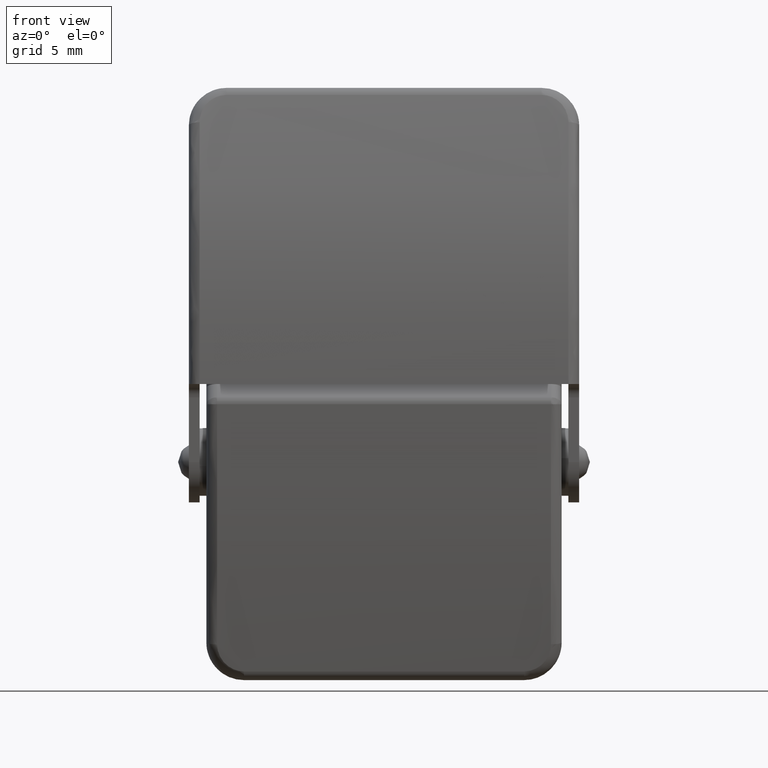
[diagram: clean part render]
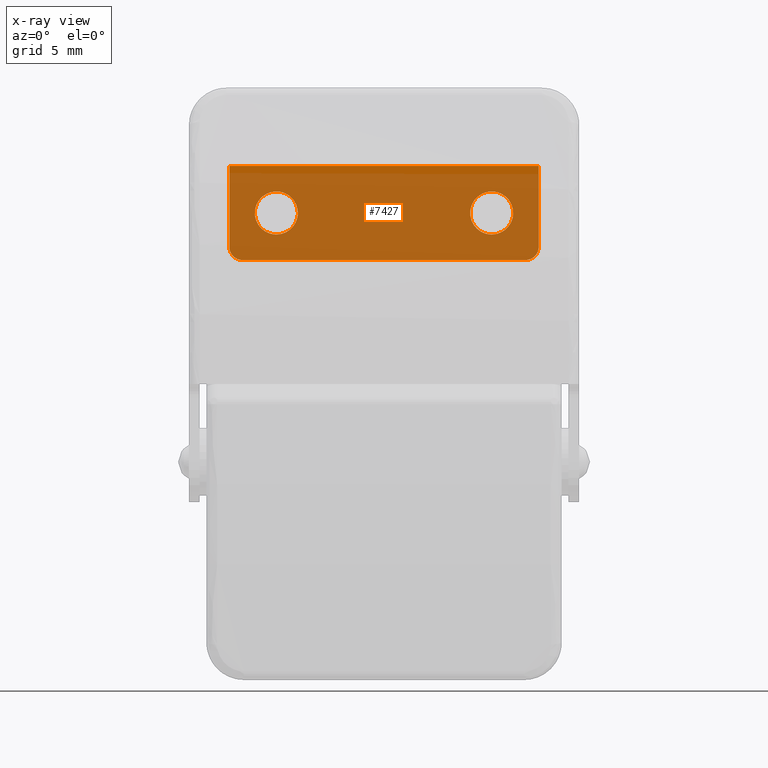
[diagram: x-ray — body ghosted, one internal face saturated and labeled with its STEP entity id]
A machine part, front view, then the same camera in x-ray: the body is ghosted and one INTERNAL B-rep face — a face not visible from any outside direction — is saturated and labeled: STEP entity #7427.
In plain terms, the highlighted face is a freeform B-spline surface patch.
Its self-contained STEP definition (entity closure, byte-faithful):
#6499=CARTESIAN_POINT('',(60.411184757832942,35.900000000001413,26.188854775800021));
#6500=VERTEX_POINT('',#6499);
#6506=CARTESIAN_POINT('',(61.999999999973298,35.900000000001413,24.399999999999999));
#6507=VERTEX_POINT('',#6506);
#6508=CARTESIAN_POINT('',(60.411184757832942,35.900000000001405,26.188854775800028));
#6509=CARTESIAN_POINT('',(60.399999999973296,35.900000000001405,26.094758591795962));
#6510=CARTESIAN_POINT('',(60.399999999973303,35.900000000001413,26.0));
#6511=CARTESIAN_POINT('',(60.399999999973311,35.900000000001405,24.400000000000002));
#6512=CARTESIAN_POINT('',(61.999999999973298,35.900000000001413,24.399999999999999));
#6520=(BOUNDED_CURVE()B_SPLINE_CURVE(2,(#6508,#6509,#6510,#6511,#6512),.UNSPECIFIED.,.F.,.U.)B_SPLINE_CURVE_WITH_KNOTS((3,2,3),(0.229562473441352,0.250000000000000,0.500000000000000),.UNSPECIFIED.)CURVE()GEOMETRIC_REPRESENTATION_ITEM()RATIONAL_B_SPLINE_CURVE((0.956026754042271,0.976055948246609,1.0,0.707106781186548,1.0))REPRESENTATION_ITEM(''));
#6521=EDGE_CURVE('',#6500,#6507,#6520,.T.);
#6523=CARTESIAN_POINT('',(63.597015677428452,35.900000000001413,25.902322336419910));
#6524=VERTEX_POINT('',#6523);
#6525=CARTESIAN_POINT('',(61.999999999973298,35.900000000001413,24.399999999999999));
#6526=CARTESIAN_POINT('',(63.505129706409953,35.900000000001405,24.400000000000002));
#6527=CARTESIAN_POINT('',(63.597015677428452,35.900000000001405,25.902322336419914));
#6535=(BOUNDED_CURVE()B_SPLINE_CURVE(2,(#6525,#6526,#6527),.UNSPECIFIED.,.F.,.U.)B_SPLINE_CURVE_WITH_KNOTS((3,3),(0.500000000000000,0.739332962171888),.UNSPECIFIED.)CURVE()GEOMETRIC_REPRESENTATION_ITEM()RATIONAL_B_SPLINE_CURVE((1.0,0.719603993365270,0.976072041523006))REPRESENTATION_ITEM(''));
#6536=EDGE_CURVE('',#6507,#6524,#6535,.T.);
#6610=CARTESIAN_POINT('',(61.999999999973298,35.900000000001413,27.600000000000001));
#6611=VERTEX_POINT('',#6610);
#6612=CARTESIAN_POINT('',(63.597015677428452,35.900000000001420,25.902322336419918));
#6613=CARTESIAN_POINT('',(63.599999999973306,35.900000000001405,25.951115578397037));
#6614=CARTESIAN_POINT('',(63.599999999973313,35.900000000001413,26.0));
#6615=CARTESIAN_POINT('',(63.599999999973299,35.900000000001405,27.599999999999994));
#6616=CARTESIAN_POINT('',(61.999999999973298,35.900000000001413,27.600000000000001));
#6624=(BOUNDED_CURVE()B_SPLINE_CURVE(2,(#6612,#6613,#6614,#6615,#6616),.UNSPECIFIED.,.F.,.U.)B_SPLINE_CURVE_WITH_KNOTS((3,2,3),(0.739332962171889,0.750000000000000,1.0),.UNSPECIFIED.)CURVE()GEOMETRIC_REPRESENTATION_ITEM()RATIONAL_B_SPLINE_CURVE((0.976072041523008,0.987502787821278,1.0,0.707106781186548,1.0))REPRESENTATION_ITEM(''));
#6625=EDGE_CURVE('',#6524,#6611,#6624,.T.);
#6627=CARTESIAN_POINT('',(61.999999999973298,35.900000000001413,27.600000000000001));
#6628=CARTESIAN_POINT('',(60.578920759080219,35.900000000001398,27.600000000000001));
#6629=CARTESIAN_POINT('',(60.411184757832942,35.900000000001405,26.188854775800024));
#6637=(BOUNDED_CURVE()B_SPLINE_CURVE(2,(#6627,#6628,#6629),.UNSPECIFIED.,.F.,.U.)B_SPLINE_CURVE_WITH_KNOTS((3,3),(0.0,0.229562473441353),.UNSPECIFIED.)CURVE()GEOMETRIC_REPRESENTATION_ITEM()RATIONAL_B_SPLINE_CURVE((1.0,0.731050832939938,0.956026754042271))REPRESENTATION_ITEM(''));
#6638=EDGE_CURVE('',#6611,#6500,#6637,.T.);
#6685=CARTESIAN_POINT('',(76.411184757832942,35.900000000001413,26.188854775800021));
#6686=VERTEX_POINT('',#6685);
#6692=CARTESIAN_POINT('',(77.999999999973298,35.900000000001413,24.399999999999999));
#6693=VERTEX_POINT('',#6692);
#6694=CARTESIAN_POINT('',(76.411184757832942,35.900000000001398,26.188854775800024));
#6695=CARTESIAN_POINT('',(76.399999999973275,35.900000000001413,26.094758591795966));
#6696=CARTESIAN_POINT('',(76.399999999973289,35.900000000001413,26.0));
#6697=CARTESIAN_POINT('',(76.399999999973289,35.900000000001405,24.400000000000002));
#6698=CARTESIAN_POINT('',(77.999999999973298,35.900000000001413,24.399999999999999));
#6706=(BOUNDED_CURVE()B_SPLINE_CURVE(2,(#6694,#6695,#6696,#6697,#6698),.UNSPECIFIED.,.F.,.U.)B_SPLINE_CURVE_WITH_KNOTS((3,2,3),(0.229562473441352,0.250000000000000,0.500000000000000),.UNSPECIFIED.)CURVE()GEOMETRIC_REPRESENTATION_ITEM()RATIONAL_B_SPLINE_CURVE((0.956026754042270,0.976055948246609,1.0,0.707106781186548,1.0))REPRESENTATION_ITEM(''));
#6707=EDGE_CURVE('',#6686,#6693,#6706,.T.);
#6709=CARTESIAN_POINT('',(79.597015677428459,35.900000000001413,25.902322336419921));
#6710=VERTEX_POINT('',#6709);
#6711=CARTESIAN_POINT('',(77.999999999973298,35.900000000001413,24.399999999999999));
#6712=CARTESIAN_POINT('',(79.505129706409988,35.900000000001413,24.399999999999995));
#6713=CARTESIAN_POINT('',(79.597015677428459,35.900000000001405,25.902322336419921));
#6721=(BOUNDED_CURVE()B_SPLINE_CURVE(2,(#6711,#6712,#6713),.UNSPECIFIED.,.F.,.U.)B_SPLINE_CURVE_WITH_KNOTS((3,3),(0.500000000000000,0.739332962171890),.UNSPECIFIED.)CURVE()GEOMETRIC_REPRESENTATION_ITEM()RATIONAL_B_SPLINE_CURVE((1.0,0.719603993365268,0.976072041523010))REPRESENTATION_ITEM(''));
#6722=EDGE_CURVE('',#6693,#6710,#6721,.T.);
#6796=CARTESIAN_POINT('',(77.999999999973298,35.900000000001413,27.600000000000001));
#6797=VERTEX_POINT('',#6796);
#6798=CARTESIAN_POINT('',(79.597015677428459,35.900000000001398,25.902322336419918));
#6799=CARTESIAN_POINT('',(79.599999999973306,35.900000000001398,25.951115578397037));
#6800=CARTESIAN_POINT('',(79.599999999973306,35.900000000001413,26.0));
#6801=CARTESIAN_POINT('',(79.599999999973292,35.900000000001405,27.599999999999994));
#6802=CARTESIAN_POINT('',(77.999999999973298,35.900000000001413,27.600000000000001));
#6810=(BOUNDED_CURVE()B_SPLINE_CURVE(2,(#6798,#6799,#6800,#6801,#6802),.UNSPECIFIED.,.F.,.U.)B_SPLINE_CURVE_WITH_KNOTS((3,2,3),(0.739332962171889,0.750000000000000,1.0),.UNSPECIFIED.)CURVE()GEOMETRIC_REPRESENTATION_ITEM()RATIONAL_B_SPLINE_CURVE((0.976072041523008,0.987502787821279,1.0,0.707106781186548,1.0))REPRESENTATION_ITEM(''));
#6811=EDGE_CURVE('',#6710,#6797,#6810,.T.);
#6813=CARTESIAN_POINT('',(77.999999999973298,35.900000000001413,27.600000000000001));
#6814=CARTESIAN_POINT('',(76.578920759080191,35.900000000001398,27.600000000000001));
#6815=CARTESIAN_POINT('',(76.411184757832942,35.900000000001398,26.188854775800024));
#6823=(BOUNDED_CURVE()B_SPLINE_CURVE(2,(#6813,#6814,#6815),.UNSPECIFIED.,.F.,.U.)B_SPLINE_CURVE_WITH_KNOTS((3,3),(0.0,0.229562473441352),.UNSPECIFIED.)CURVE()GEOMETRIC_REPRESENTATION_ITEM()RATIONAL_B_SPLINE_CURVE((1.0,0.731050832939939,0.956026754042270))REPRESENTATION_ITEM(''));
#6824=EDGE_CURVE('',#6797,#6686,#6823,.T.);
#6983=CARTESIAN_POINT('',(81.499999999973284,35.900000000002613,23.499999999997598));
#6984=VERTEX_POINT('',#6983);
#6990=CARTESIAN_POINT('',(80.499999999973284,35.900000000001299,22.499999999997598));
#6991=VERTEX_POINT('',#6990);
#6992=CARTESIAN_POINT('',(80.499999999973284,35.900000000001292,22.499999999997598));
#6993=CARTESIAN_POINT('',(81.499999999973284,35.900000000001292,22.499999999997595));
#6994=CARTESIAN_POINT('',(81.499999999973284,35.900000000002613,23.499999999997598));
#7002=(BOUNDED_CURVE()B_SPLINE_CURVE(2,(#6992,#6993,#6994),.UNSPECIFIED.,.F.,.U.)CURVE()GEOMETRIC_REPRESENTATION_ITEM()QUASI_UNIFORM_CURVE()RATIONAL_B_SPLINE_CURVE((1.0,0.707106781186548,1.0))REPRESENTATION_ITEM(''));
#7003=EDGE_CURVE('',#6991,#6984,#7002,.T.);
#7044=CARTESIAN_POINT('',(59.499999999973099,35.900000000001299,22.499999999997598));
#7045=VERTEX_POINT('',#7044);
#7051=CARTESIAN_POINT('',(58.499999999973213,35.900000000002613,23.499999999997598));
#7052=VERTEX_POINT('',#7051);
#7053=CARTESIAN_POINT('',(58.499999999973213,35.900000000002613,23.499999999997598));
#7054=CARTESIAN_POINT('',(58.499999999973198,35.900000000001292,22.499999999997698));
#7055=CARTESIAN_POINT('',(59.499999999973099,35.900000000001292,22.499999999997598));
#7063=(BOUNDED_CURVE()B_SPLINE_CURVE(2,(#7053,#7054,#7055),.UNSPECIFIED.,.F.,.U.)CURVE()GEOMETRIC_REPRESENTATION_ITEM()QUASI_UNIFORM_CURVE()RATIONAL_B_SPLINE_CURVE((1.0,0.707106781186584,1.0))REPRESENTATION_ITEM(''));
#7064=EDGE_CURVE('',#7052,#7045,#7063,.T.);
#7201=CARTESIAN_POINT('',(81.499999999973284,35.900000000010500,29.500000000021199));
#7202=VERTEX_POINT('',#7201);
#7203=CARTESIAN_POINT('',(81.499999999973284,35.900000000002613,23.499999999997598));
#7204=CARTESIAN_POINT('',(81.499999999973284,35.900000000010500,29.500000000021199));
#7205=QUASI_UNIFORM_CURVE('',1,(#7203,#7204),.UNSPECIFIED.,.F.,.U.);
#7206=EDGE_CURVE('',#6984,#7202,#7205,.T.);
#7253=CARTESIAN_POINT('',(58.499999999973099,35.900000000010500,29.500000000021199));
#7254=VERTEX_POINT('',#7253);
#7255=CARTESIAN_POINT('',(58.499999999973213,35.900000000002613,23.499999999997598));
#7256=CARTESIAN_POINT('',(58.499999999973099,35.900000000010500,29.500000000021199));
#7257=QUASI_UNIFORM_CURVE('',1,(#7255,#7256),.UNSPECIFIED.,.F.,.U.);
#7258=EDGE_CURVE('',#7052,#7254,#7257,.T.);
#7390=CARTESIAN_POINT('',(58.499999999973099,35.900000000010500,29.500000000021199));
#7391=CARTESIAN_POINT('',(81.499999999973284,35.900000000010500,29.500000000021199));
#7392=QUASI_UNIFORM_CURVE('',1,(#7390,#7391),.UNSPECIFIED.,.F.,.U.);
#7393=EDGE_CURVE('',#7254,#7202,#7392,.T.);
#7398=CARTESIAN_POINT('',(57.351150044551552,35.900000000000830,22.150350013563781));
#7399=CARTESIAN_POINT('',(57.351150044551552,35.900000000010969,29.849650174209650));
#7400=CARTESIAN_POINT('',(82.648850572302919,35.900000000000830,22.150350013563781));
#7401=CARTESIAN_POINT('',(82.648850572302919,35.900000000010969,29.849650174209650));
#7402=B_SPLINE_SURFACE_WITH_KNOTS('',1,1,((#7398,#7400),(#7399,#7401)),.UNSPECIFIED.,.F.,.F.,.U.,(2,2),(2,2),(0.0,7.699300160645874),(0.0,25.297700527751370),.UNSPECIFIED.);
#7403=ORIENTED_EDGE('',*,*,#7258,.F.);
#7404=ORIENTED_EDGE('',*,*,#7064,.T.);
#7405=CARTESIAN_POINT('',(59.499999999973099,35.900000000001299,22.499999999997598));
#7406=CARTESIAN_POINT('',(80.499999999973284,35.900000000001299,22.499999999997598));
#7407=QUASI_UNIFORM_CURVE('',1,(#7405,#7406),.UNSPECIFIED.,.F.,.U.);
#7408=EDGE_CURVE('',#7045,#6991,#7407,.T.);
#7409=ORIENTED_EDGE('',*,*,#7408,.T.);
#7410=ORIENTED_EDGE('',*,*,#7003,.T.);
#7411=ORIENTED_EDGE('',*,*,#7206,.T.);
#7412=ORIENTED_EDGE('',*,*,#7393,.F.);
#7413=EDGE_LOOP('',(#7403,#7404,#7409,#7410,#7411,#7412));
#7414=FACE_OUTER_BOUND('',#7413,.T.);
#7415=ORIENTED_EDGE('',*,*,#6722,.F.);
#7416=ORIENTED_EDGE('',*,*,#6707,.F.);
#7417=ORIENTED_EDGE('',*,*,#6824,.F.);
#7418=ORIENTED_EDGE('',*,*,#6811,.F.);
#7419=EDGE_LOOP('',(#7415,#7416,#7417,#7418));
#7420=FACE_BOUND('',#7419,.T.);
#7421=ORIENTED_EDGE('',*,*,#6536,.F.);
#7422=ORIENTED_EDGE('',*,*,#6521,.F.);
#7423=ORIENTED_EDGE('',*,*,#6638,.F.);
#7424=ORIENTED_EDGE('',*,*,#6625,.F.);
#7425=EDGE_LOOP('',(#7421,#7422,#7423,#7424));
#7426=FACE_BOUND('',#7425,.T.);
#7427=ADVANCED_FACE('',(#7414,#7420,#7426),#7402,.F.);